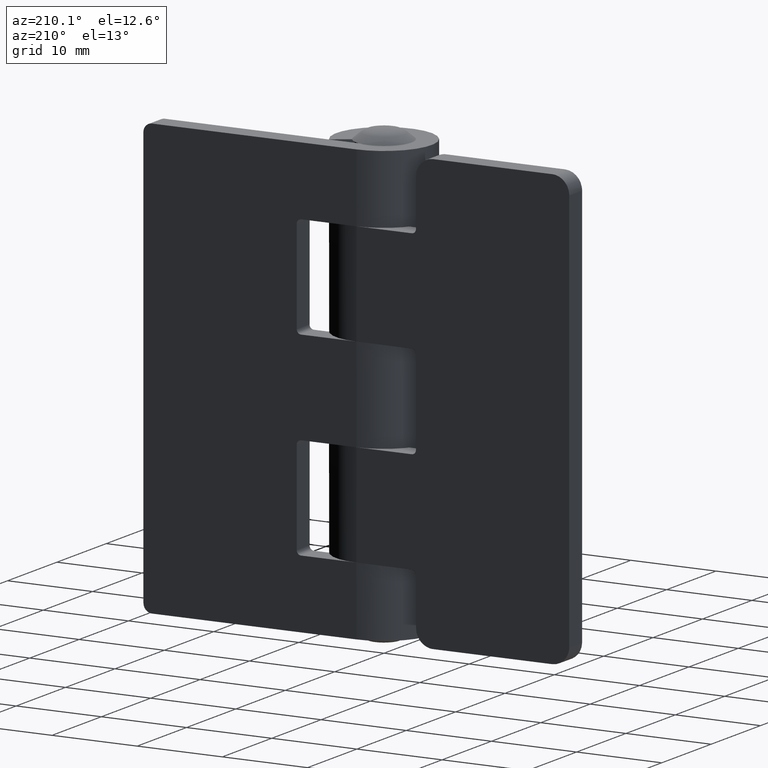
[diagram: clean part render]
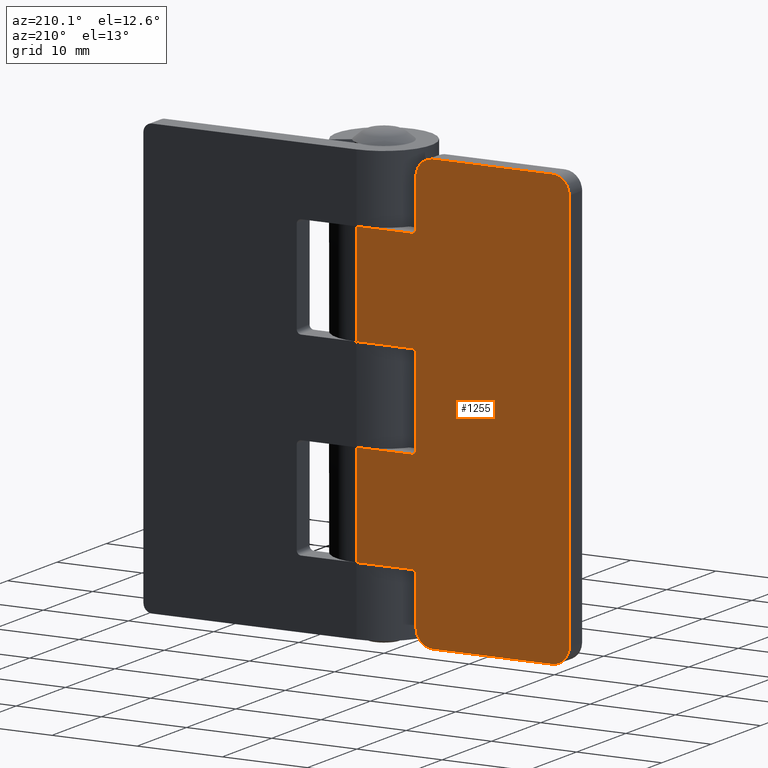
[diagram: same view with one face highlighted and labeled with its STEP entity id]
A machine part, auxiliary view. The second image highlights one B-rep face of the part: STEP entity #1255.
In plain terms, the highlighted face is a freeform B-spline surface patch.
Its self-contained STEP definition (entity closure, byte-faithful):
#36=CARTESIAN_POINT('',(-6.500000000000000,5.599999000000000,43.0));
#37=VERTEX_POINT('',#36);
#43=CARTESIAN_POINT('',(-7.0,5.599999000000000,43.500000000000000));
#44=VERTEX_POINT('',#43);
#45=CARTESIAN_POINT('',(-6.999999999999999,5.599999000000000,43.500000000000000));
#46=CARTESIAN_POINT('',(-6.999999999999999,5.599999000000000,42.999999999999993));
#47=CARTESIAN_POINT('',(-6.500000000000000,5.599999000000000,43.0));
#55=(BOUNDED_CURVE()B_SPLINE_CURVE(2,(#45,#46,#47),.UNSPECIFIED.,.F.,.U.)CURVE()GEOMETRIC_REPRESENTATION_ITEM()QUASI_UNIFORM_CURVE()RATIONAL_B_SPLINE_CURVE((1.0,0.707106781186548,1.0))REPRESENTATION_ITEM(''));
#56=EDGE_CURVE('',#44,#37,#55,.T.);
#97=CARTESIAN_POINT('',(-6.500000000000000,5.599999000000000,20.0));
#98=VERTEX_POINT('',#97);
#104=CARTESIAN_POINT('',(-7.0,5.599999000000000,20.500000000000000));
#105=VERTEX_POINT('',#104);
#106=CARTESIAN_POINT('',(-6.999999999999999,5.599999000000000,20.500000000000000));
#107=CARTESIAN_POINT('',(-6.999999999999999,5.599999000000000,19.999999999999996));
#108=CARTESIAN_POINT('',(-6.500000000000000,5.599999000000000,20.0));
#116=(BOUNDED_CURVE()B_SPLINE_CURVE(2,(#106,#107,#108),.UNSPECIFIED.,.F.,.U.)CURVE()GEOMETRIC_REPRESENTATION_ITEM()QUASI_UNIFORM_CURVE()RATIONAL_B_SPLINE_CURVE((1.0,0.707106781186548,1.0))REPRESENTATION_ITEM(''));
#117=EDGE_CURVE('',#105,#98,#116,.T.);
#158=CARTESIAN_POINT('',(-7.0,5.599999000000000,30.500000000000000));
#159=VERTEX_POINT('',#158);
#165=CARTESIAN_POINT('',(-6.500000000000000,5.599999000000000,31.0));
#166=VERTEX_POINT('',#165);
#167=CARTESIAN_POINT('',(-6.500000000000000,5.599999000000000,31.0));
#168=CARTESIAN_POINT('',(-6.999999999999999,5.599999000000000,31.000000000000007));
#169=CARTESIAN_POINT('',(-6.999999999999999,5.599999000000000,30.500000000000000));
#177=(BOUNDED_CURVE()B_SPLINE_CURVE(2,(#167,#168,#169),.UNSPECIFIED.,.F.,.U.)CURVE()GEOMETRIC_REPRESENTATION_ITEM()QUASI_UNIFORM_CURVE()RATIONAL_B_SPLINE_CURVE((1.0,0.707106781186548,1.0))REPRESENTATION_ITEM(''));
#178=EDGE_CURVE('',#166,#159,#177,.T.);
#219=CARTESIAN_POINT('',(-7.0,5.599999000000000,7.500000000000000));
#220=VERTEX_POINT('',#219);
#226=CARTESIAN_POINT('',(-6.500000000000000,5.599999000000000,8.0));
#227=VERTEX_POINT('',#226);
#228=CARTESIAN_POINT('',(-6.500000000000000,5.599999000000000,8.0));
#229=CARTESIAN_POINT('',(-6.999999999999999,5.599999000000000,8.0));
#230=CARTESIAN_POINT('',(-6.999999999999999,5.599999000000000,7.500000000000000));
#238=(BOUNDED_CURVE()B_SPLINE_CURVE(2,(#228,#229,#230),.UNSPECIFIED.,.F.,.U.)CURVE()GEOMETRIC_REPRESENTATION_ITEM()QUASI_UNIFORM_CURVE()RATIONAL_B_SPLINE_CURVE((1.0,0.707106781186548,1.0))REPRESENTATION_ITEM(''));
#239=EDGE_CURVE('',#227,#220,#238,.T.);
#280=CARTESIAN_POINT('',(-23.0,5.599999000000000,51.0));
#281=VERTEX_POINT('',#280);
#287=CARTESIAN_POINT('',(-25.0,5.599999000000000,49.0));
#288=VERTEX_POINT('',#287);
#289=CARTESIAN_POINT('',(-25.0,5.599999000000000,49.0));
#290=CARTESIAN_POINT('',(-25.0,5.599999000000000,51.000000000000007));
#291=CARTESIAN_POINT('',(-23.0,5.599999000000000,51.000000000000007));
#299=(BOUNDED_CURVE()B_SPLINE_CURVE(2,(#289,#290,#291),.UNSPECIFIED.,.F.,.U.)CURVE()GEOMETRIC_REPRESENTATION_ITEM()QUASI_UNIFORM_CURVE()RATIONAL_B_SPLINE_CURVE((1.0,0.707106781186548,1.0))REPRESENTATION_ITEM(''));
#300=EDGE_CURVE('',#288,#281,#299,.T.);
#341=CARTESIAN_POINT('',(-7.0,5.599999000000000,49.0));
#342=VERTEX_POINT('',#341);
#348=CARTESIAN_POINT('',(-9.0,5.599999000000000,51.0));
#349=VERTEX_POINT('',#348);
#350=CARTESIAN_POINT('',(-9.0,5.599999000000000,51.000000000000007));
#351=CARTESIAN_POINT('',(-6.999999999999999,5.599999000000000,51.000000000000007));
#352=CARTESIAN_POINT('',(-6.999999999999999,5.599999000000000,49.0));
#360=(BOUNDED_CURVE()B_SPLINE_CURVE(2,(#350,#351,#352),.UNSPECIFIED.,.F.,.U.)CURVE()GEOMETRIC_REPRESENTATION_ITEM()QUASI_UNIFORM_CURVE()RATIONAL_B_SPLINE_CURVE((1.0,0.707106781186548,1.0))REPRESENTATION_ITEM(''));
#361=EDGE_CURVE('',#349,#342,#360,.T.);
#402=CARTESIAN_POINT('',(-9.0,5.599999000000000,0.0));
#403=VERTEX_POINT('',#402);
#409=CARTESIAN_POINT('',(-7.0,5.599999000000000,2.0));
#410=VERTEX_POINT('',#409);
#411=CARTESIAN_POINT('',(-6.999999999999999,5.599999000000000,2.0));
#412=CARTESIAN_POINT('',(-6.999999999999999,5.599999000000000,0.0));
#413=CARTESIAN_POINT('',(-9.0,5.599999000000000,0.0));
#421=(BOUNDED_CURVE()B_SPLINE_CURVE(2,(#411,#412,#413),.UNSPECIFIED.,.F.,.U.)CURVE()GEOMETRIC_REPRESENTATION_ITEM()QUASI_UNIFORM_CURVE()RATIONAL_B_SPLINE_CURVE((1.0,0.707106781186548,1.0))REPRESENTATION_ITEM(''));
#422=EDGE_CURVE('',#410,#403,#421,.T.);
#463=CARTESIAN_POINT('',(-25.0,5.599999000000000,2.0));
#464=VERTEX_POINT('',#463);
#470=CARTESIAN_POINT('',(-23.0,5.599999000000000,0.0));
#471=VERTEX_POINT('',#470);
#472=CARTESIAN_POINT('',(-23.0,5.599999000000000,0.0));
#473=CARTESIAN_POINT('',(-25.0,5.599999000000000,0.0));
#474=CARTESIAN_POINT('',(-25.0,5.599999000000000,2.0));
#482=(BOUNDED_CURVE()B_SPLINE_CURVE(2,(#472,#473,#474),.UNSPECIFIED.,.F.,.U.)CURVE()GEOMETRIC_REPRESENTATION_ITEM()QUASI_UNIFORM_CURVE()RATIONAL_B_SPLINE_CURVE((1.0,0.707106781186548,1.0))REPRESENTATION_ITEM(''));
#483=EDGE_CURVE('',#471,#464,#482,.T.);
#498=CARTESIAN_POINT('',(0.0,5.599999000000000,43.0));
#499=VERTEX_POINT('',#498);
#500=CARTESIAN_POINT('',(-6.500000000000000,5.599999000000000,43.0));
#501=CARTESIAN_POINT('',(0.0,5.599999000000000,43.0));
#502=QUASI_UNIFORM_CURVE('',1,(#500,#501),.UNSPECIFIED.,.F.,.U.);
#503=EDGE_CURVE('',#37,#499,#502,.T.);
#607=CARTESIAN_POINT('',(-7.0,5.599999000000000,49.0));
#608=CARTESIAN_POINT('',(-7.0,5.599999000000000,43.500000000000000));
#609=QUASI_UNIFORM_CURVE('',1,(#607,#608),.UNSPECIFIED.,.F.,.U.);
#610=EDGE_CURVE('',#342,#44,#609,.T.);
#621=CARTESIAN_POINT('',(0.0,5.599999000000000,20.0));
#622=VERTEX_POINT('',#621);
#623=CARTESIAN_POINT('',(-6.500000000000000,5.599999000000000,20.0));
#624=CARTESIAN_POINT('',(0.0,5.599999000000000,20.0));
#625=QUASI_UNIFORM_CURVE('',1,(#623,#624),.UNSPECIFIED.,.F.,.U.);
#626=EDGE_CURVE('',#98,#622,#625,.T.);
#726=CARTESIAN_POINT('',(-7.0,5.599999000000000,30.500000000000000));
#727=CARTESIAN_POINT('',(-7.0,5.599999000000000,20.500000000000000));
#728=QUASI_UNIFORM_CURVE('',1,(#726,#727),.UNSPECIFIED.,.F.,.U.);
#729=EDGE_CURVE('',#159,#105,#728,.T.);
#754=CARTESIAN_POINT('',(0.0,5.599999000000000,31.0));
#755=VERTEX_POINT('',#754);
#756=CARTESIAN_POINT('',(0.0,5.599999000000000,31.0));
#757=CARTESIAN_POINT('',(-6.500000000000000,5.599999000000000,31.0));
#758=QUASI_UNIFORM_CURVE('',1,(#756,#757),.UNSPECIFIED.,.F.,.U.);
#759=EDGE_CURVE('',#755,#166,#758,.T.);
#849=CARTESIAN_POINT('',(-7.0,5.599999000000000,7.500000000000000));
#850=CARTESIAN_POINT('',(-7.0,5.599999000000000,2.0));
#851=QUASI_UNIFORM_CURVE('',1,(#849,#850),.UNSPECIFIED.,.F.,.U.);
#852=EDGE_CURVE('',#220,#410,#851,.T.);
#877=CARTESIAN_POINT('',(0.0,5.599999000000000,8.0));
#878=VERTEX_POINT('',#877);
#879=CARTESIAN_POINT('',(0.0,5.599999000000000,8.0));
#880=CARTESIAN_POINT('',(-6.500000000000000,5.599999000000000,8.0));
#881=QUASI_UNIFORM_CURVE('',1,(#879,#880),.UNSPECIFIED.,.F.,.U.);
#882=EDGE_CURVE('',#878,#227,#881,.T.);
#973=CARTESIAN_POINT('',(-25.0,5.599999000000000,49.0));
#974=CARTESIAN_POINT('',(-25.0,5.599999000000000,2.0));
#975=QUASI_UNIFORM_CURVE('',1,(#973,#974),.UNSPECIFIED.,.F.,.U.);
#976=EDGE_CURVE('',#288,#464,#975,.T.);
#999=CARTESIAN_POINT('',(-23.0,5.599999000000000,0.0));
#1000=CARTESIAN_POINT('',(-9.0,5.599999000000000,0.0));
#1001=QUASI_UNIFORM_CURVE('',1,(#999,#1000),.UNSPECIFIED.,.F.,.U.);
#1002=EDGE_CURVE('',#471,#403,#1001,.T.);
#1086=CARTESIAN_POINT('',(0.0,5.599999000000000,20.0));
#1087=CARTESIAN_POINT('',(0.0,5.599999000000000,8.0));
#1088=QUASI_UNIFORM_CURVE('',1,(#1086,#1087),.UNSPECIFIED.,.F.,.U.);
#1089=EDGE_CURVE('',#622,#878,#1088,.T.);
#1105=CARTESIAN_POINT('',(-23.0,5.599999000000000,51.0));
#1106=CARTESIAN_POINT('',(-9.0,5.599999000000000,51.0));
#1107=QUASI_UNIFORM_CURVE('',1,(#1105,#1106),.UNSPECIFIED.,.F.,.U.);
#1108=EDGE_CURVE('',#281,#349,#1107,.T.);
#1220=CARTESIAN_POINT('',(0.0,5.599999000000000,43.0));
#1221=CARTESIAN_POINT('',(0.0,5.599999000000000,31.0));
#1222=QUASI_UNIFORM_CURVE('',1,(#1220,#1221),.UNSPECIFIED.,.F.,.U.);
#1223=EDGE_CURVE('',#499,#755,#1222,.T.);
#1228=CARTESIAN_POINT('',(-26.248749951545150,5.599999000000000,-2.547449901152102));
#1229=CARTESIAN_POINT('',(-26.248749951545150,5.599999000000000,53.547451269078707));
#1230=CARTESIAN_POINT('',(1.248750622097403,5.599999000000000,-2.547449901152102));
#1231=CARTESIAN_POINT('',(1.248750622097403,5.599999000000000,53.547451269078707));
#1232=B_SPLINE_SURFACE_WITH_KNOTS('',1,1,((#1228,#1230),(#1229,#1231)),.UNSPECIFIED.,.F.,.F.,.U.,(2,2),(2,2),(0.0,56.094901170230813),(0.0,27.497500573642551),.UNSPECIFIED.);
#1233=ORIENTED_EDGE('',*,*,#1002,.F.);
#1234=ORIENTED_EDGE('',*,*,#483,.T.);
#1235=ORIENTED_EDGE('',*,*,#976,.F.);
#1236=ORIENTED_EDGE('',*,*,#300,.T.);
#1237=ORIENTED_EDGE('',*,*,#1108,.T.);
#1238=ORIENTED_EDGE('',*,*,#361,.T.);
#1239=ORIENTED_EDGE('',*,*,#610,.T.);
#1240=ORIENTED_EDGE('',*,*,#56,.T.);
#1241=ORIENTED_EDGE('',*,*,#503,.T.);
#1242=ORIENTED_EDGE('',*,*,#1223,.T.);
#1243=ORIENTED_EDGE('',*,*,#759,.T.);
#1244=ORIENTED_EDGE('',*,*,#178,.T.);
#1245=ORIENTED_EDGE('',*,*,#729,.T.);
#1246=ORIENTED_EDGE('',*,*,#117,.T.);
#1247=ORIENTED_EDGE('',*,*,#626,.T.);
#1248=ORIENTED_EDGE('',*,*,#1089,.T.);
#1249=ORIENTED_EDGE('',*,*,#882,.T.);
#1250=ORIENTED_EDGE('',*,*,#239,.T.);
#1251=ORIENTED_EDGE('',*,*,#852,.T.);
#1252=ORIENTED_EDGE('',*,*,#422,.T.);
#1253=EDGE_LOOP('',(#1233,#1234,#1235,#1236,#1237,#1238,#1239,#1240,#1241,#1242,#1243,#1244,#1245,#1246,#1247,#1248,#1249,#1250,#1251,#1252));
#1254=FACE_OUTER_BOUND('',#1253,.T.);
#1255=ADVANCED_FACE('',(#1254),#1232,.T.);